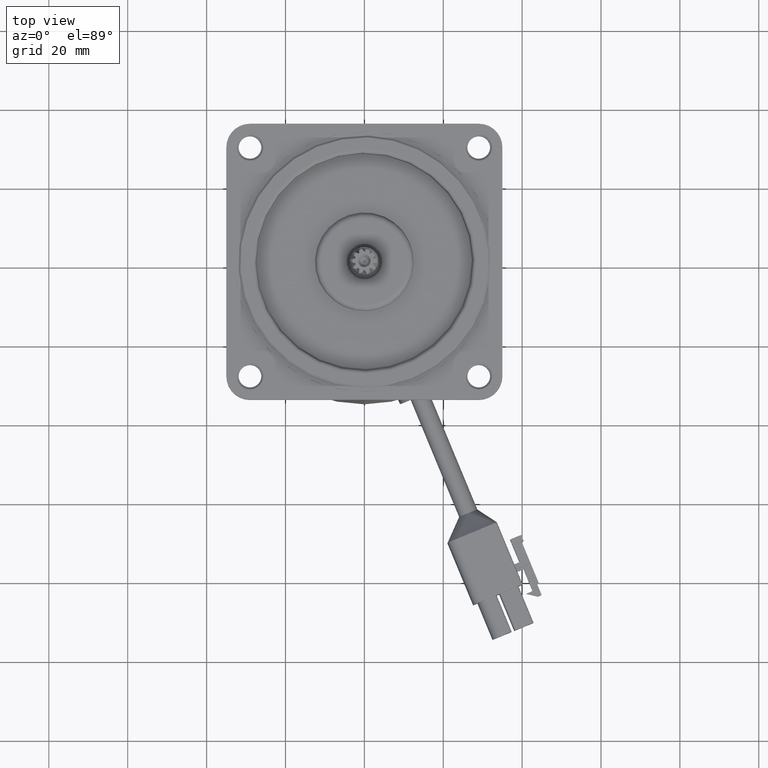
[diagram: clean part render]
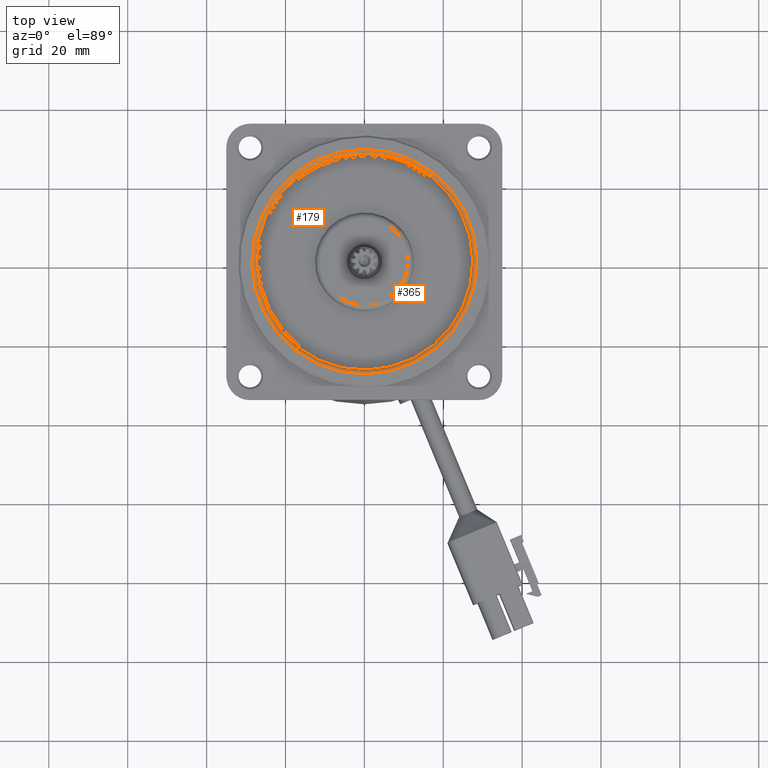
[diagram: same view with one multi-face feature highlighted, each face labeled with its STEP entity id]
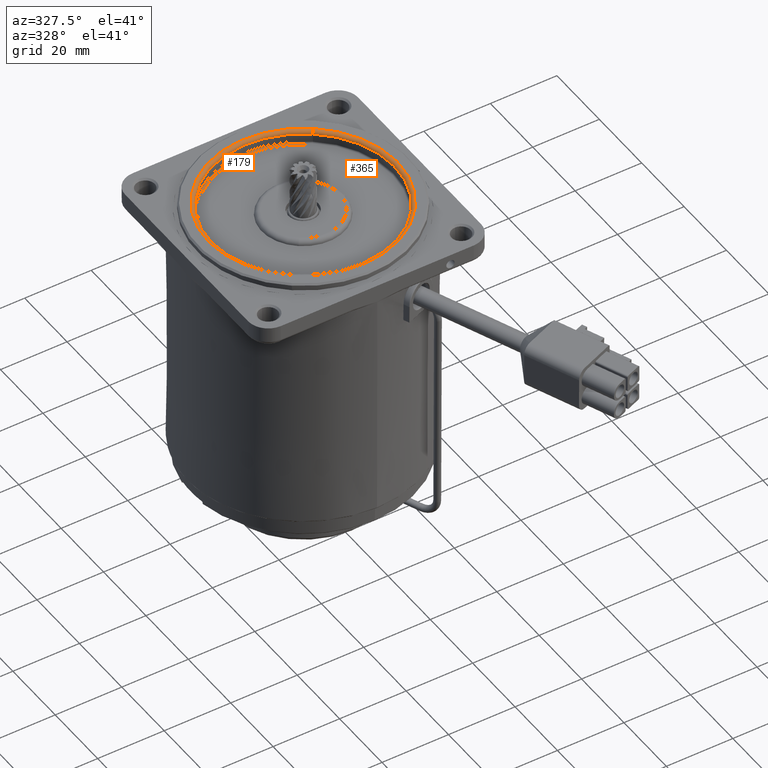
[diagram: same view with one multi-face feature highlighted, each face labeled with its STEP entity id]
A machine part, top view. The highlighted faces form ONE feature: a constant-radius fillet chain: 2 tangent blend faces with common blend radius 1 mm. The faces share edges in the B-rep.
A second angle (auxiliary view) of the same feature is appended — it is thin or edge-on in the first view.
Their STEP definitions:
[1] entity #365 (Torus):
#173 = VERTEX_POINT ( 'NONE', #5923 ) ;
#176 = VERTEX_POINT ( 'NONE', #5864 ) ;
#178 = VERTEX_POINT ( 'NONE', #5910 ) ;
#185 = EDGE_CURVE ( 'NONE', #178, #173, #5945, .T. ) ;
#193 = EDGE_CURVE ( 'NONE', #176, #205, #5644, .T. ) ;
#205 = VERTEX_POINT ( 'NONE', #5963 ) ;
#237 = EDGE_CURVE ( 'NONE', #205, #173, #5976, .T. ) ;
#291 = EDGE_CURVE ( 'NONE', #178, #176, #6386, .T. ) ;
#334 = ORIENTED_EDGE ( 'NONE', *, *, #193, .F. ) ;
#344 = ORIENTED_EDGE ( 'NONE', *, *, #291, .F. ) ;
#347 = EDGE_LOOP ( 'NONE', ( #334, #344, #364, #358 ) ) ;
#358 = ORIENTED_EDGE ( 'NONE', *, *, #237, .F. ) ;
#364 = ORIENTED_EDGE ( 'NONE', *, *, #185, .T. ) ;
#365 = ADVANCED_FACE ( 'NONE', ( #7152 ), #7138, .T. ) ;
#5630 = AXIS2_PLACEMENT_3D ( 'NONE', #5636, #5896, #5940 ) ;
#5636 = CARTESIAN_POINT ( 'NONE',  ( 28.50000000000000000, 3.490243377569956500E-015, 1.000000000000000000 ) ) ;
#5644 = CIRCLE ( 'NONE', #5630, 1.000000000000000900 ) ;
#5864 = CARTESIAN_POINT ( 'NONE',  ( 28.50000000000000000, 3.490243377569956500E-015, 0.0000000000000000000 ) ) ;
#5896 = DIRECTION ( 'NONE',  ( -1.224646799147353200E-016, 1.000000000000000000, 0.0000000000000000000 ) ) ;
#5910 = CARTESIAN_POINT ( 'NONE',  ( -28.50000000000000000, 0.0000000000000000000, 0.0000000000000000000 ) ) ;
#5923 = CARTESIAN_POINT ( 'NONE',  ( -27.50000000000000000, 0.0000000000000000000, 1.000000000000000000 ) ) ;
#5934 = DIRECTION ( 'NONE',  ( 0.0000000000000000000, 0.0000000000000000000, -1.000000000000000000 ) ) ;
#5936 = AXIS2_PLACEMENT_3D ( 'NONE', #5941, #5939, #5934 ) ;
#5939 = DIRECTION ( 'NONE',  ( 0.0000000000000000000, -1.000000000000000000, 0.0000000000000000000 ) ) ;
#5940 = DIRECTION ( 'NONE',  ( -1.000000000000000000, -1.224646799147353500E-016, 0.0000000000000000000 ) ) ;
#5941 = CARTESIAN_POINT ( 'NONE',  ( -28.50000000000000000, 0.0000000000000000000, 1.000000000000000000 ) ) ;
#5945 = CIRCLE ( 'NONE', #5936, 1.000000000000000000 ) ;
#5963 = CARTESIAN_POINT ( 'NONE',  ( 27.50000000000000000, 3.367778697655221300E-015, 1.000000000000000000 ) ) ;
#5976 = CIRCLE ( 'NONE', #6024, 27.50000000000000000 ) ;
#6022 = DIRECTION ( 'NONE',  ( -1.000000000000000000, 0.0000000000000000000, 0.0000000000000000000 ) ) ;
#6023 = DIRECTION ( 'NONE',  ( -0.0000000000000000000, -0.0000000000000000000, -1.000000000000000000 ) ) ;
#6024 = AXIS2_PLACEMENT_3D ( 'NONE', #6029, #6023, #6022 ) ;
#6029 = CARTESIAN_POINT ( 'NONE',  ( 0.0000000000000000000, 0.0000000000000000000, 1.000000000000000000 ) ) ;
#6382 = AXIS2_PLACEMENT_3D ( 'NONE', #6395, #6421, #6420 ) ;
#6386 = CIRCLE ( 'NONE', #6382, 28.50000000000000000 ) ;
#6395 = CARTESIAN_POINT ( 'NONE',  ( 0.0000000000000000000, 0.0000000000000000000, 0.0000000000000000000 ) ) ;
#6420 = DIRECTION ( 'NONE',  ( -1.000000000000000000, 0.0000000000000000000, 0.0000000000000000000 ) ) ;
#6421 = DIRECTION ( 'NONE',  ( 0.0000000000000000000, 0.0000000000000000000, 1.000000000000000000 ) ) ;
#7126 = DIRECTION ( 'NONE',  ( -1.000000000000000000, 0.0000000000000000000, 0.0000000000000000000 ) ) ;
#7138 = TOROIDAL_SURFACE ( 'NONE', #7155, 28.50000000000000000, 1.000000000000000000 ) ;
#7143 = DIRECTION ( 'NONE',  ( -0.0000000000000000000, -0.0000000000000000000, -1.000000000000000000 ) ) ;
#7144 = CARTESIAN_POINT ( 'NONE',  ( 0.0000000000000000000, 0.0000000000000000000, 1.000000000000000000 ) ) ;
#7152 = FACE_OUTER_BOUND ( 'NONE', #347, .T. ) ;
#7155 = AXIS2_PLACEMENT_3D ( 'NONE', #7144, #7143, #7126 ) ;
[2] entity #179 (Torus):
#167 = ORIENTED_EDGE ( 'NONE', *, *, #181, .F. ) ;
#169 = EDGE_LOOP ( 'NONE', ( #167, #206, #172, #204 ) ) ;
#172 = ORIENTED_EDGE ( 'NONE', *, *, #198, .F. ) ;
#173 = VERTEX_POINT ( 'NONE', #5923 ) ;
#176 = VERTEX_POINT ( 'NONE', #5864 ) ;
#178 = VERTEX_POINT ( 'NONE', #5910 ) ;
#179 = ADVANCED_FACE ( 'NONE', ( #5907 ), #5922, .T. ) ;
#181 = EDGE_CURVE ( 'NONE', #176, #178, #5912, .T. ) ;
#185 = EDGE_CURVE ( 'NONE', #178, #173, #5945, .T. ) ;
#193 = EDGE_CURVE ( 'NONE', #176, #205, #5644, .T. ) ;
#198 = EDGE_CURVE ( 'NONE', #173, #205, #5970, .T. ) ;
#204 = ORIENTED_EDGE ( 'NONE', *, *, #185, .F. ) ;
#205 = VERTEX_POINT ( 'NONE', #5963 ) ;
#206 = ORIENTED_EDGE ( 'NONE', *, *, #193, .T. ) ;
#5630 = AXIS2_PLACEMENT_3D ( 'NONE', #5636, #5896, #5940 ) ;
#5636 = CARTESIAN_POINT ( 'NONE',  ( 28.50000000000000000, 3.490243377569956500E-015, 1.000000000000000000 ) ) ;
#5644 = CIRCLE ( 'NONE', #5630, 1.000000000000000900 ) ;
#5864 = CARTESIAN_POINT ( 'NONE',  ( 28.50000000000000000, 3.490243377569956500E-015, 0.0000000000000000000 ) ) ;
#5894 = DIRECTION ( 'NONE',  ( 0.0000000000000000000, 0.0000000000000000000, 1.000000000000000000 ) ) ;
#5895 = AXIS2_PLACEMENT_3D ( 'NONE', #5899, #5894, #5953 ) ;
#5896 = DIRECTION ( 'NONE',  ( -1.224646799147353200E-016, 1.000000000000000000, 0.0000000000000000000 ) ) ;
#5897 = DIRECTION ( 'NONE',  ( -1.000000000000000000, 0.0000000000000000000, 0.0000000000000000000 ) ) ;
#5898 = DIRECTION ( 'NONE',  ( -0.0000000000000000000, -0.0000000000000000000, -1.000000000000000000 ) ) ;
#5899 = CARTESIAN_POINT ( 'NONE',  ( 0.0000000000000000000, 0.0000000000000000000, 0.0000000000000000000 ) ) ;
#5902 = CARTESIAN_POINT ( 'NONE',  ( 0.0000000000000000000, 0.0000000000000000000, 1.000000000000000000 ) ) ;
#5903 = AXIS2_PLACEMENT_3D ( 'NONE', #5902, #5898, #5897 ) ;
#5907 = FACE_OUTER_BOUND ( 'NONE', #169, .T. ) ;
#5910 = CARTESIAN_POINT ( 'NONE',  ( -28.50000000000000000, 0.0000000000000000000, 0.0000000000000000000 ) ) ;
#5912 = CIRCLE ( 'NONE', #5895, 28.50000000000000000 ) ;
#5922 = TOROIDAL_SURFACE ( 'NONE', #5903, 28.50000000000000000, 1.000000000000000000 ) ;
#5923 = CARTESIAN_POINT ( 'NONE',  ( -27.50000000000000000, 0.0000000000000000000, 1.000000000000000000 ) ) ;
#5934 = DIRECTION ( 'NONE',  ( 0.0000000000000000000, 0.0000000000000000000, -1.000000000000000000 ) ) ;
#5936 = AXIS2_PLACEMENT_3D ( 'NONE', #5941, #5939, #5934 ) ;
#5939 = DIRECTION ( 'NONE',  ( 0.0000000000000000000, -1.000000000000000000, 0.0000000000000000000 ) ) ;
#5940 = DIRECTION ( 'NONE',  ( -1.000000000000000000, -1.224646799147353500E-016, 0.0000000000000000000 ) ) ;
#5941 = CARTESIAN_POINT ( 'NONE',  ( -28.50000000000000000, 0.0000000000000000000, 1.000000000000000000 ) ) ;
#5945 = CIRCLE ( 'NONE', #5936, 1.000000000000000000 ) ;
#5953 = DIRECTION ( 'NONE',  ( -1.000000000000000000, 0.0000000000000000000, 0.0000000000000000000 ) ) ;
#5963 = CARTESIAN_POINT ( 'NONE',  ( 27.50000000000000000, 3.367778697655221300E-015, 1.000000000000000000 ) ) ;
#5966 = DIRECTION ( 'NONE',  ( -1.000000000000000000, 0.0000000000000000000, 0.0000000000000000000 ) ) ;
#5967 = DIRECTION ( 'NONE',  ( -0.0000000000000000000, -0.0000000000000000000, -1.000000000000000000 ) ) ;
#5968 = CARTESIAN_POINT ( 'NONE',  ( 0.0000000000000000000, 0.0000000000000000000, 1.000000000000000000 ) ) ;
#5969 = AXIS2_PLACEMENT_3D ( 'NONE', #5968, #5967, #5966 ) ;
#5970 = CIRCLE ( 'NONE', #5969, 27.50000000000000000 ) ;